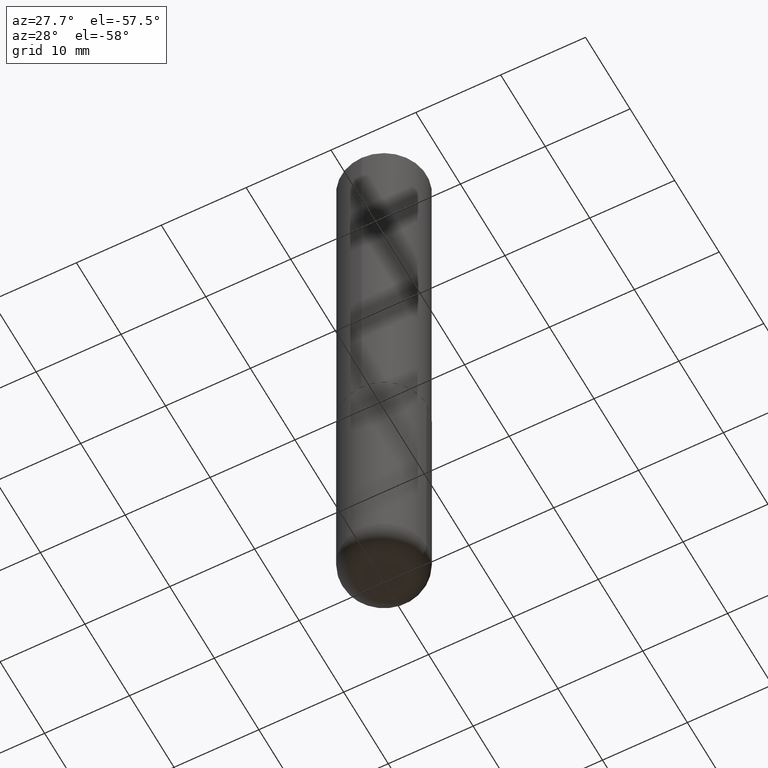
[diagram: clean part render]
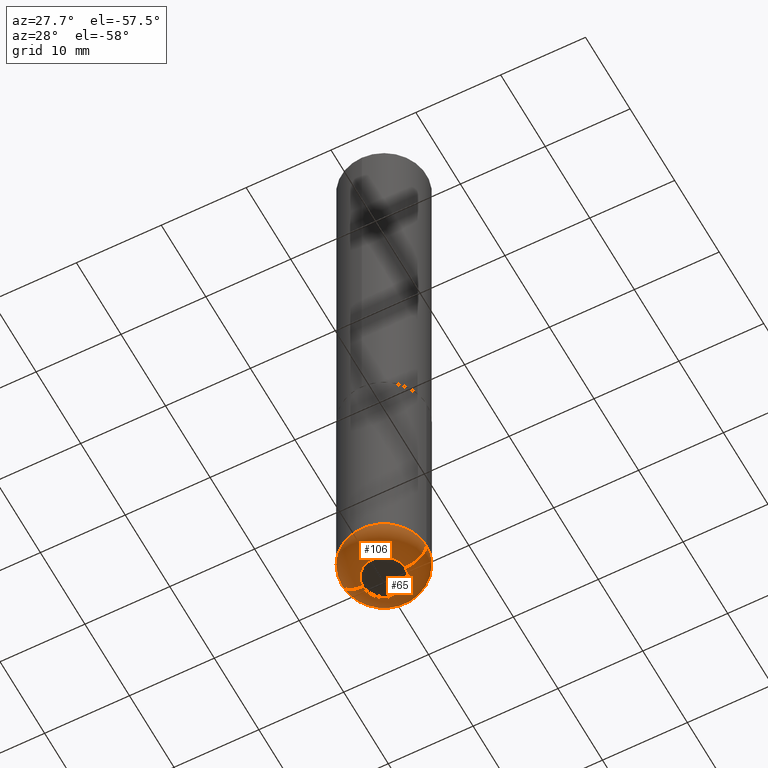
[diagram: same view with one multi-face feature highlighted, each face labeled with its STEP entity id]
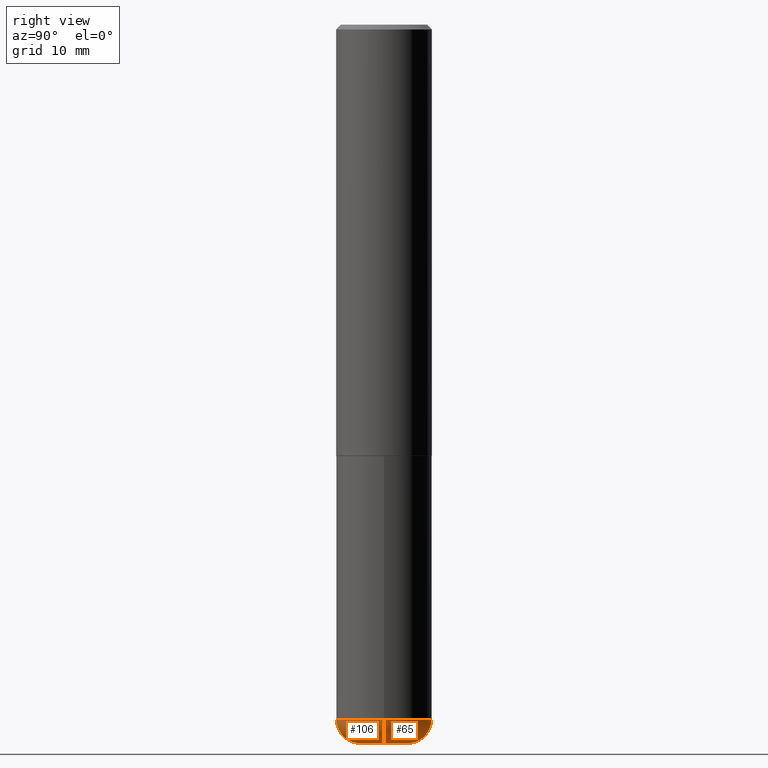
[diagram: same view with one multi-face feature highlighted, each face labeled with its STEP entity id]
A machine part, auxiliary view. The highlighted faces form ONE feature: a constant-radius fillet chain: 2 tangent blend faces with common blend radius 2.4994 mm. The faces share edges in the B-rep.
A second angle (right view) of the same feature is appended — it is thin or edge-on in the first view.
Their STEP definitions:
[1] entity #65 (Torus):
#3 = AXIS2_PLACEMENT_3D ( 'NONE', #74, #255, #385 ) ;
#4 = CIRCLE ( 'NONE', #61, 0.09840000000000037605 ) ;
#14 = CIRCLE ( 'NONE', #167, 0.1968500000000000250 ) ;
#22 = ORIENTED_EDGE ( 'NONE', *, *, #187, .T. ) ;
#42 = EDGE_LOOP ( 'NONE', ( #135, #22, #220, #360 ) ) ;
#50 = AXIS2_PLACEMENT_3D ( 'NONE', #312, #415, #344 ) ;
#61 = AXIS2_PLACEMENT_3D ( 'NONE', #277, #224, #118 ) ;
#65 = ADVANCED_FACE ( 'NONE', ( #374 ), #330, .T. ) ;
#74 = CARTESIAN_POINT ( 'NONE',  ( 6.980346160374851918E-29, -9.966084333593872426E-15, -2.854399999999999604 ) ) ;
#102 = AXIS2_PLACEMENT_3D ( 'NONE', #231, #194, #311 ) ;
#105 = CARTESIAN_POINT ( 'NONE',  ( 0.09845000000000002360, -1.099711877295425424E-14, -2.952800000000000313 ) ) ;
#118 = DIRECTION ( 'NONE',  ( 1.000000000000000000, -6.982962677686273810E-15, 0.000000000000000000 ) ) ;
#132 = CARTESIAN_POINT ( 'NONE',  ( 0.1968500000000001915, -1.134068053669641561E-14, -2.854399999999999604 ) ) ;
#135 = ORIENTED_EDGE ( 'NONE', *, *, #206, .T. ) ;
#149 = VERTEX_POINT ( 'NONE', #132 ) ;
#167 = AXIS2_PLACEMENT_3D ( 'NONE', #401, #362, #404 ) ;
#181 = VERTEX_POINT ( 'NONE', #185 ) ;
#185 = CARTESIAN_POINT ( 'NONE',  ( -0.09845000000000002360, -9.088748866115164767E-15, -2.952800000000000313 ) ) ;
#187 = EDGE_CURVE ( 'NONE', #181, #306, #341, .T. ) ;
#194 = DIRECTION ( 'NONE',  ( 7.105427357601001859E-15, 1.000000000000000000, -3.491481338843145583E-15 ) ) ;
#206 = EDGE_CURVE ( 'NONE', #339, #181, #266, .T. ) ;
#220 = ORIENTED_EDGE ( 'NONE', *, *, #372, .F. ) ;
#224 = DIRECTION ( 'NONE',  ( -6.982962677686266711E-15, -1.000000000000000000, 3.491481338843145583E-15 ) ) ;
#231 = CARTESIAN_POINT ( 'NONE',  ( -0.09845000000000000973, -9.266555010238054316E-15, -2.854399999999999604 ) ) ;
#255 = DIRECTION ( 'NONE',  ( -2.445468806185136597E-29, 3.491481338843145583E-15, 1.000000000000000000 ) ) ;
#266 = CIRCLE ( 'NONE', #50, 0.09845000000000002360 ) ;
#277 = CARTESIAN_POINT ( 'NONE',  ( 0.09845000000000000973, -1.065355700921208656E-14, -2.854399999999999604 ) ) ;
#295 = CARTESIAN_POINT ( 'NONE',  ( -0.1968500000000001915, -8.567380958250113850E-15, -2.854399999999999604 ) ) ;
#306 = VERTEX_POINT ( 'NONE', #295 ) ;
#311 = DIRECTION ( 'NONE',  ( -1.000000000000000000, 7.105427357601001859E-15, 0.000000000000000000 ) ) ;
#312 = CARTESIAN_POINT ( 'NONE',  ( 7.220980290903472425E-29, -1.030964609733604011E-14, -2.952800000000000313 ) ) ;
#330 = TOROIDAL_SURFACE ( 'NONE', #3, 0.09845000000000000973, 0.09840000000000038993 ) ;
#339 = VERTEX_POINT ( 'NONE', #105 ) ;
#341 = CIRCLE ( 'NONE', #102, 0.09840000000000037605 ) ;
#344 = DIRECTION ( 'NONE',  ( 1.000000000000000000, -6.982962677686273021E-15, 0.000000000000000000 ) ) ;
#360 = ORIENTED_EDGE ( 'NONE', *, *, #410, .F. ) ;
#362 = DIRECTION ( 'NONE',  ( -2.445468806185136597E-29, 3.491481338843145583E-15, 1.000000000000000000 ) ) ;
#372 = EDGE_CURVE ( 'NONE', #149, #306, #14, .T. ) ;
#374 = FACE_OUTER_BOUND ( 'NONE', #42, .T. ) ;
#385 = DIRECTION ( 'NONE',  ( 1.000000000000000000, -6.982962677686264344E-15, 4.883557194083112340E-29 ) ) ;
#401 = CARTESIAN_POINT ( 'NONE',  ( 6.980346160374851918E-29, -9.966084333593872426E-15, -2.854399999999999604 ) ) ;
#404 = DIRECTION ( 'NONE',  ( 1.000000000000000000, -6.982962677686267499E-15, 0.000000000000000000 ) ) ;
#410 = EDGE_CURVE ( 'NONE', #339, #149, #4, .T. ) ;
#415 = DIRECTION ( 'NONE',  ( -2.445468806185136597E-29, 3.491481338843145583E-15, 1.000000000000000000 ) ) ;
[2] entity #106 (Torus):
#4 = CIRCLE ( 'NONE', #61, 0.09840000000000037605 ) ;
#5 = DIRECTION ( 'NONE',  ( 1.000000000000000000, -6.982962677686264344E-15, 4.883557194083112340E-29 ) ) ;
#15 = DIRECTION ( 'NONE',  ( 1.000000000000000000, -6.982962677686267499E-15, 0.000000000000000000 ) ) ;
#32 = CARTESIAN_POINT ( 'NONE',  ( 7.220980290903472425E-29, -1.030964609733604011E-14, -2.952800000000000313 ) ) ;
#45 = EDGE_CURVE ( 'NONE', #306, #149, #313, .T. ) ;
#61 = AXIS2_PLACEMENT_3D ( 'NONE', #277, #224, #118 ) ;
#64 = ORIENTED_EDGE ( 'NONE', *, *, #187, .F. ) ;
#67 = EDGE_LOOP ( 'NONE', ( #64, #182, #99, #196 ) ) ;
#90 = AXIS2_PLACEMENT_3D ( 'NONE', #32, #195, #190 ) ;
#97 = FACE_OUTER_BOUND ( 'NONE', #67, .T. ) ;
#99 = ORIENTED_EDGE ( 'NONE', *, *, #410, .T. ) ;
#102 = AXIS2_PLACEMENT_3D ( 'NONE', #231, #194, #311 ) ;
#105 = CARTESIAN_POINT ( 'NONE',  ( 0.09845000000000002360, -1.099711877295425424E-14, -2.952800000000000313 ) ) ;
#106 = ADVANCED_FACE ( 'NONE', ( #97 ), #412, .T. ) ;
#118 = DIRECTION ( 'NONE',  ( 1.000000000000000000, -6.982962677686273810E-15, 0.000000000000000000 ) ) ;
#132 = CARTESIAN_POINT ( 'NONE',  ( 0.1968500000000001915, -1.134068053669641561E-14, -2.854399999999999604 ) ) ;
#149 = VERTEX_POINT ( 'NONE', #132 ) ;
#181 = VERTEX_POINT ( 'NONE', #185 ) ;
#182 = ORIENTED_EDGE ( 'NONE', *, *, #221, .T. ) ;
#185 = CARTESIAN_POINT ( 'NONE',  ( -0.09845000000000002360, -9.088748866115164767E-15, -2.952800000000000313 ) ) ;
#187 = EDGE_CURVE ( 'NONE', #181, #306, #341, .T. ) ;
#188 = AXIS2_PLACEMENT_3D ( 'NONE', #249, #240, #15 ) ;
#190 = DIRECTION ( 'NONE',  ( 1.000000000000000000, -6.982962677686273021E-15, 0.000000000000000000 ) ) ;
#194 = DIRECTION ( 'NONE',  ( 7.105427357601001859E-15, 1.000000000000000000, -3.491481338843145583E-15 ) ) ;
#195 = DIRECTION ( 'NONE',  ( -2.445468806185136597E-29, 3.491481338843145583E-15, 1.000000000000000000 ) ) ;
#196 = ORIENTED_EDGE ( 'NONE', *, *, #45, .F. ) ;
#221 = EDGE_CURVE ( 'NONE', #181, #339, #251, .T. ) ;
#223 = DIRECTION ( 'NONE',  ( -2.445468806185136597E-29, 3.491481338843145583E-15, 1.000000000000000000 ) ) ;
#224 = DIRECTION ( 'NONE',  ( -6.982962677686266711E-15, -1.000000000000000000, 3.491481338843145583E-15 ) ) ;
#229 = AXIS2_PLACEMENT_3D ( 'NONE', #253, #223, #5 ) ;
#231 = CARTESIAN_POINT ( 'NONE',  ( -0.09845000000000000973, -9.266555010238054316E-15, -2.854399999999999604 ) ) ;
#240 = DIRECTION ( 'NONE',  ( -2.445468806185136597E-29, 3.491481338843145583E-15, 1.000000000000000000 ) ) ;
#249 = CARTESIAN_POINT ( 'NONE',  ( 6.980346160374851918E-29, -9.966084333593872426E-15, -2.854399999999999604 ) ) ;
#251 = CIRCLE ( 'NONE', #90, 0.09845000000000002360 ) ;
#253 = CARTESIAN_POINT ( 'NONE',  ( 6.980346160374851918E-29, -9.966084333593872426E-15, -2.854399999999999604 ) ) ;
#277 = CARTESIAN_POINT ( 'NONE',  ( 0.09845000000000000973, -1.065355700921208656E-14, -2.854399999999999604 ) ) ;
#295 = CARTESIAN_POINT ( 'NONE',  ( -0.1968500000000001915, -8.567380958250113850E-15, -2.854399999999999604 ) ) ;
#306 = VERTEX_POINT ( 'NONE', #295 ) ;
#311 = DIRECTION ( 'NONE',  ( -1.000000000000000000, 7.105427357601001859E-15, 0.000000000000000000 ) ) ;
#313 = CIRCLE ( 'NONE', #188, 0.1968500000000000250 ) ;
#339 = VERTEX_POINT ( 'NONE', #105 ) ;
#341 = CIRCLE ( 'NONE', #102, 0.09840000000000037605 ) ;
#410 = EDGE_CURVE ( 'NONE', #339, #149, #4, .T. ) ;
#412 = TOROIDAL_SURFACE ( 'NONE', #229, 0.09845000000000000973, 0.09840000000000038993 ) ;